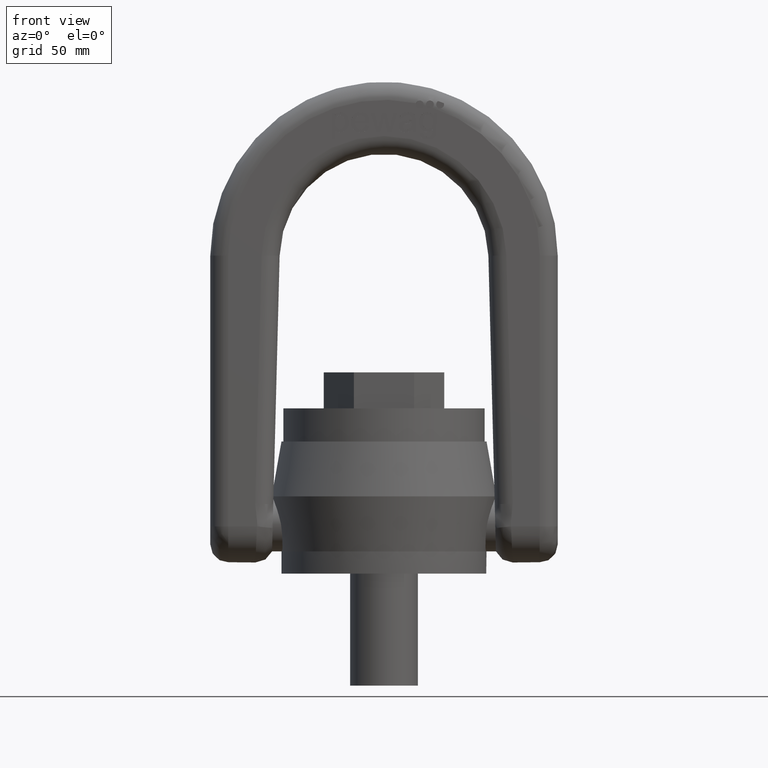
[diagram: clean part render]
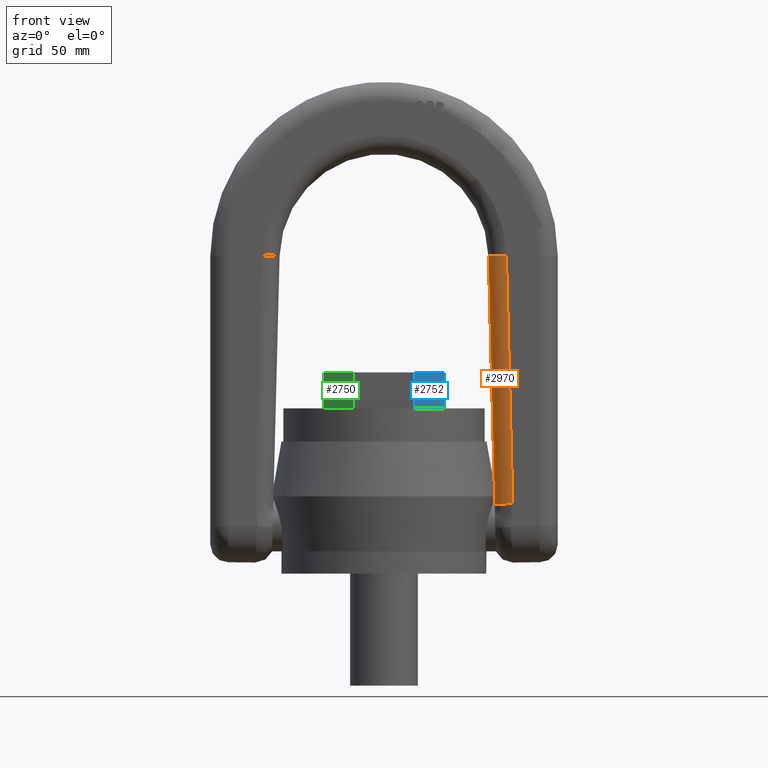
[diagram: same view with three faces highlighted in distinct colors, each labeled with its STEP entity id]
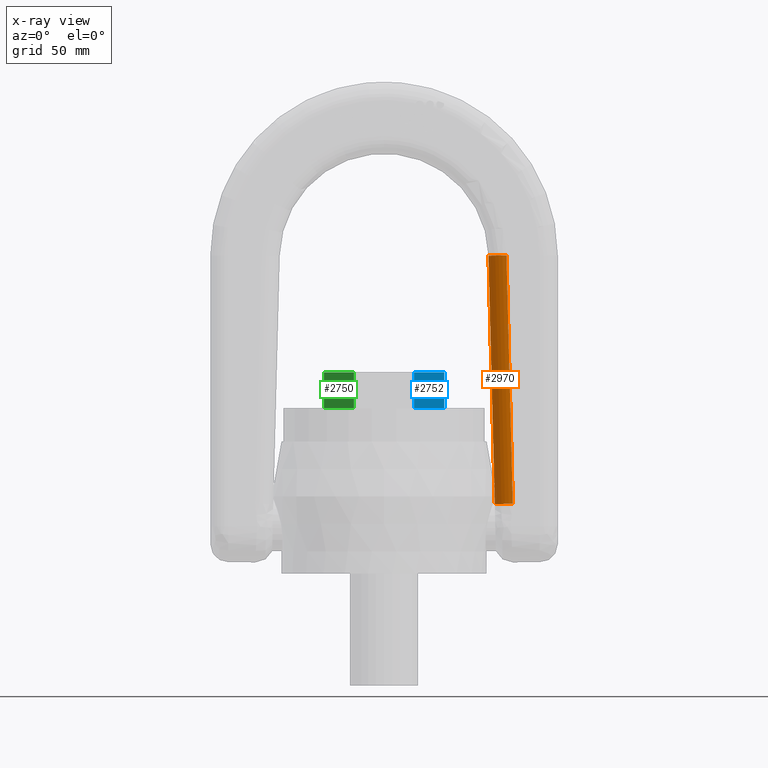
[diagram: x-ray of the same camera — body ghosted, the three highlighted faces saturated]
A machine part, front view with three faces highlighted in distinct colors.
The next image is the same camera in x-ray (body ghosted, the three faces saturated) — at least one of them is partly hidden behind the body in this view.
Their STEP definitions:

[orange] entity #2970 — the highlighted cylindrical surface (edge-blend (fillet) strip) has radius 9.5 mm, axis along (0.0255, 0, -0.9997).
#1808=LINE('',#6874,#2090);
#1841=LINE('',#7085,#2123);
#2090=VECTOR('',#5937,1.);
#2123=VECTOR('',#5998,1.);
#2616=FACE_OUTER_BOUND('',#3326,.T.);
#2970=ADVANCED_FACE('',(#2616),#2999,.T.);
#2999=CYLINDRICAL_SURFACE('',#5798,9.5);
#3326=EDGE_LOOP('',(#4501,#4502,#4503,#4504));
#4501=ORIENTED_EDGE('',*,*,#5538,.F.);
#4502=ORIENTED_EDGE('',*,*,#5088,.F.);
#4503=ORIENTED_EDGE('',*,*,#5539,.F.);
#4504=ORIENTED_EDGE('',*,*,#5027,.F.);
#4614=VERTEX_POINT('',#6873);
#4615=VERTEX_POINT('',#6875);
#4670=VERTEX_POINT('',#7078);
#4672=VERTEX_POINT('',#7084);
#5027=EDGE_CURVE('',#4614,#4615,#1808,.T.);
#5088=EDGE_CURVE('',#4672,#4670,#1841,.T.);
#5538=EDGE_CURVE('',#4670,#4614,#5594,.T.);
#5539=EDGE_CURVE('',#4615,#4672,#5595,.T.);
#5594=CIRCLE('',#5795,9.5);
#5595=CIRCLE('',#5797,9.5);
#5795=AXIS2_PLACEMENT_3D('',#9626,#6564,#6565);
#5797=AXIS2_PLACEMENT_3D('',#9628,#6568,#6569);
#5798=AXIS2_PLACEMENT_3D('',#9629,#6570,#6571);
#5937=DIRECTION('',(0.0255100308212767,0.,-0.999674566210173));
#5998=DIRECTION('',(-0.0255100308212767,0.,0.999674566210173));
#6564=DIRECTION('',(-0.0255100308212788,0.,0.999674566210173));
#6565=DIRECTION('',(-0.999674566210173,0.,-0.0255100308212788));
#6568=DIRECTION('',(0.0255100308212759,0.,-0.999674566210173));
#6569=DIRECTION('',(-0.999674566210173,0.,-0.0255100308212759));
#6570=DIRECTION('',(0.0255100308212767,0.,-0.999674566210173));
#6571=DIRECTION('',(-0.999674566210173,0.,-0.0255100308212759));
#6873=CARTESIAN_POINT('',(64.4790095205561,-19.,167.645396987972));
#6874=CARTESIAN_POINT('',(64.4790095205561,-19.,167.645396987972));
#6875=CARTESIAN_POINT('',(67.8176174505286,-19.,36.8136681859262));
#7078=CARTESIAN_POINT('',(54.9821011415595,-9.5,167.40305169517));
#7084=CARTESIAN_POINT('',(58.320709071532,-9.5,36.5713228931241));
#7085=CARTESIAN_POINT('',(54.9821011415595,-9.5,167.40305169517));
#9626=CARTESIAN_POINT('',(64.4790095205561,-9.5,167.645396987972));
#9628=CARTESIAN_POINT('',(67.8176174505286,-9.5,36.8136681859262));
#9629=CARTESIAN_POINT('',(64.4790095205561,-9.5,167.645396987972));

[blue] entity #2752 — the highlighted planar face has unit normal (-0.866, 0.5, 0).
#1761=LINE('',#6632,#2043);
#1766=LINE('',#6642,#2048);
#1768=LINE('',#6646,#2050);
#1769=LINE('',#6648,#2051);
#2043=VECTOR('',#5850,1.);
#2048=VECTOR('',#5859,1.);
#2050=VECTOR('',#5863,1.);
#2051=VECTOR('',#5864,1.);
#2416=FACE_OUTER_BOUND('',#3082,.T.);
#2633=PLANE('',#5625);
#2752=ADVANCED_FACE('',(#2416),#2633,.F.);
#3082=EDGE_LOOP('',(#3367,#3368,#3369,#3370));
#3367=ORIENTED_EDGE('',*,*,#4957,.T.);
#3368=ORIENTED_EDGE('',*,*,#4964,.F.);
#3369=ORIENTED_EDGE('',*,*,#4965,.F.);
#3370=ORIENTED_EDGE('',*,*,#4962,.T.);
#4557=VERTEX_POINT('',#6631);
#4558=VERTEX_POINT('',#6633);
#4561=VERTEX_POINT('',#6643);
#4562=VERTEX_POINT('',#6647);
#4957=EDGE_CURVE('',#4558,#4557,#1761,.T.);
#4962=EDGE_CURVE('',#4561,#4558,#1766,.T.);
#4964=EDGE_CURVE('',#4562,#4557,#1768,.T.);
#4965=EDGE_CURVE('',#4561,#4562,#1769,.T.);
#5625=AXIS2_PLACEMENT_3D('',#6649,#5865,#5866);
#5850=DIRECTION('',(0.5,0.866025403784439,0.));
#5859=DIRECTION('',(0.,0.,-1.));
#5863=DIRECTION('',(0.,0.,-1.));
#5864=DIRECTION('',(0.5,0.866025403784439,0.));
#5865=DIRECTION('',(-0.866025403784439,0.5,0.));
#5866=DIRECTION('',(-0.5,-0.866025403784439,0.));
#6631=CARTESIAN_POINT('',(31.7542648054294,0.,87.));
#6632=CARTESIAN_POINT('',(15.8771324027147,-27.5,87.));
#6633=CARTESIAN_POINT('',(15.8771324027147,-27.5,87.));
#6642=CARTESIAN_POINT('',(15.8771324027147,-27.5,106.));
#6643=CARTESIAN_POINT('',(15.8771324027147,-27.5,106.));
#6646=CARTESIAN_POINT('',(31.7542648054294,0.,106.));
#6647=CARTESIAN_POINT('',(31.7542648054294,0.,106.));
#6648=CARTESIAN_POINT('',(15.8771324027147,-27.5,106.));
#6649=CARTESIAN_POINT('',(15.8771324027147,-27.5,106.));

[green] entity #2750 — the highlighted planar face has unit normal (0.866, 0.5, 0).
#1757=LINE('',#6623,#2039);
#1763=LINE('',#6636,#2045);
#1764=LINE('',#6638,#2046);
#1765=LINE('',#6640,#2047);
#2039=VECTOR('',#5846,1.);
#2045=VECTOR('',#5854,1.);
#2046=VECTOR('',#5855,1.);
#2047=VECTOR('',#5856,1.);
#2414=FACE_OUTER_BOUND('',#3080,.T.);
#2631=PLANE('',#5623);
#2750=ADVANCED_FACE('',(#2414),#2631,.F.);
#3080=EDGE_LOOP('',(#3359,#3360,#3361,#3362));
#3359=ORIENTED_EDGE('',*,*,#4953,.T.);
#3360=ORIENTED_EDGE('',*,*,#4959,.F.);
#3361=ORIENTED_EDGE('',*,*,#4960,.F.);
#3362=ORIENTED_EDGE('',*,*,#4961,.T.);
#4553=VERTEX_POINT('',#6624);
#4554=VERTEX_POINT('',#6625);
#4559=VERTEX_POINT('',#6637);
#4560=VERTEX_POINT('',#6639);
#4953=EDGE_CURVE('',#4553,#4554,#1757,.T.);
#4959=EDGE_CURVE('',#4559,#4554,#1763,.T.);
#4960=EDGE_CURVE('',#4560,#4559,#1764,.T.);
#4961=EDGE_CURVE('',#4560,#4553,#1765,.T.);
#5623=AXIS2_PLACEMENT_3D('',#6641,#5857,#5858);
#5846=DIRECTION('',(0.5,-0.866025403784439,0.));
#5854=DIRECTION('',(0.,0.,-1.));
#5855=DIRECTION('',(0.5,-0.866025403784439,0.));
#5856=DIRECTION('',(0.,0.,-1.));
#5857=DIRECTION('',(0.866025403784439,0.5,0.));
#5858=DIRECTION('',(-0.5,0.866025403784439,0.));
#6623=CARTESIAN_POINT('',(-31.7542648054294,0.,87.));
#6624=CARTESIAN_POINT('',(-31.7542648054294,0.,87.));
#6625=CARTESIAN_POINT('',(-15.8771324027147,-27.5,87.));
#6636=CARTESIAN_POINT('',(-15.8771324027147,-27.5,106.));
#6637=CARTESIAN_POINT('',(-15.8771324027147,-27.5,106.));
#6638=CARTESIAN_POINT('',(-31.7542648054294,0.,106.));
#6639=CARTESIAN_POINT('',(-31.7542648054294,0.,106.));
#6640=CARTESIAN_POINT('',(-31.7542648054294,0.,106.));
#6641=CARTESIAN_POINT('',(-31.7542648054294,0.,106.));